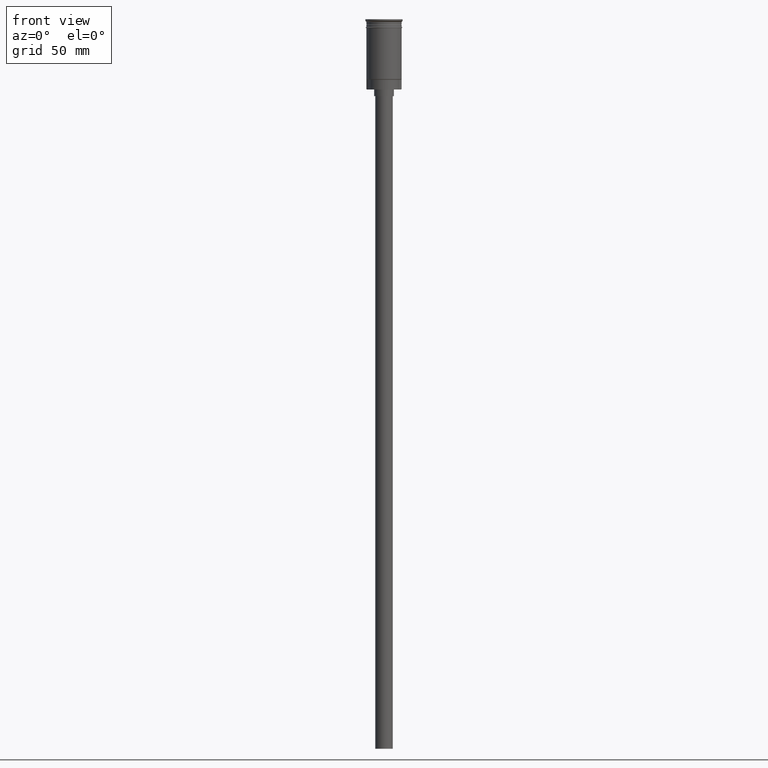
[diagram: clean part render]
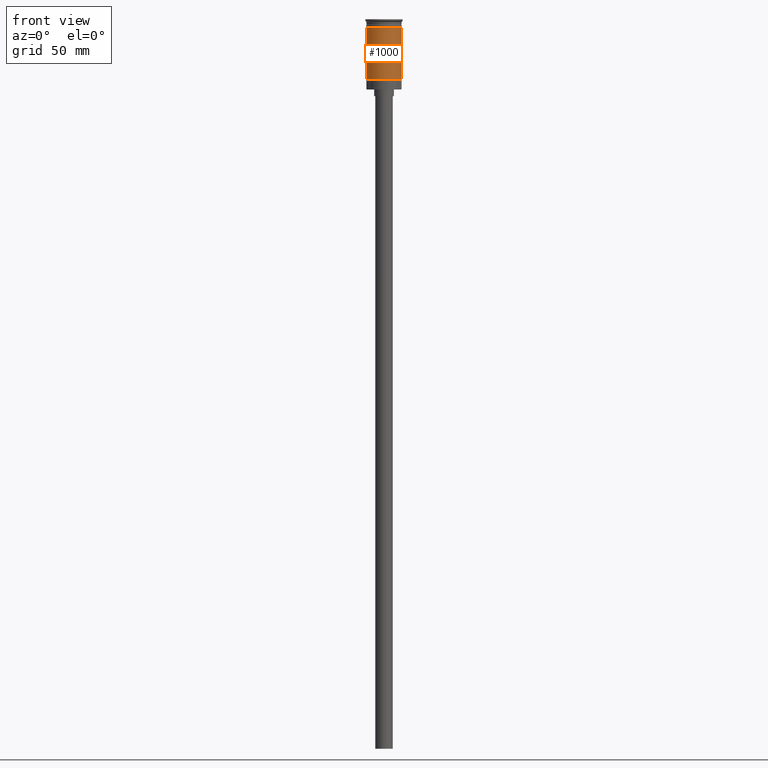
[diagram: same view with one face highlighted and labeled with its STEP entity id]
A machine part, front view. The second image highlights one B-rep face of the part: STEP entity #1000.
In plain terms, the highlighted cylindrical surface (edge-blend (fillet) strip) has radius 8 mm, axis along (-0, -0, 1).
Its self-contained STEP definition (entity closure, byte-faithful):
#42 = CARTESIAN_POINT ( 'NONE',  ( -7.999999999999996447, 9.797174393178821713E-16, 0.000000000000000000 ) ) ;
#64 = EDGE_LOOP ( 'NONE', ( #1188, #287, #428, #749 ) ) ;
#77 = CYLINDRICAL_SURFACE ( 'NONE', #950, 7.999999999999996447 ) ;
#128 = EDGE_CURVE ( 'NONE', #792, #1369, #787, .T. ) ;
#198 = VERTEX_POINT ( 'NONE', #960 ) ;
#278 = CARTESIAN_POINT ( 'NONE',  ( 0.000000000000000000, 0.000000000000000000, -3.999999999999997335 ) ) ;
#287 = ORIENTED_EDGE ( 'NONE', *, *, #622, .T. ) ;
#321 = AXIS2_PLACEMENT_3D ( 'NONE', #355, #1430, #450 ) ;
#342 = VERTEX_POINT ( 'NONE', #1229 ) ;
#355 = CARTESIAN_POINT ( 'NONE',  ( 0.000000000000000000, 0.000000000000000000, -27.30000000000006466 ) ) ;
#407 = DIRECTION ( 'NONE',  ( -0.000000000000000000, -0.000000000000000000, 1.000000000000000000 ) ) ;
#418 = CARTESIAN_POINT ( 'NONE',  ( 8.000000000000000000, 0.000000000000000000, -3.999999999999997335 ) ) ;
#428 = ORIENTED_EDGE ( 'NONE', *, *, #128, .T. ) ;
#445 = CARTESIAN_POINT ( 'NONE',  ( 7.999999999999996447, 0.000000000000000000, 0.000000000000000000 ) ) ;
#450 = DIRECTION ( 'NONE',  ( -1.000000000000000000, 0.000000000000000000, 0.000000000000000000 ) ) ;
#560 = EDGE_CURVE ( 'NONE', #342, #198, #911, .T. ) ;
#573 = DIRECTION ( 'NONE',  ( 1.000000000000000000, 0.000000000000000000, 0.000000000000000000 ) ) ;
#622 = EDGE_CURVE ( 'NONE', #342, #792, #761, .T. ) ;
#624 = CARTESIAN_POINT ( 'NONE',  ( 7.999999999999996447, 9.797174393178821713E-16, -27.30000000000006466 ) ) ;
#669 = DIRECTION ( 'NONE',  ( -0.000000000000000000, -0.000000000000000000, 1.000000000000000000 ) ) ;
#684 = CIRCLE ( 'NONE', #873, 8.000000000000000000 ) ;
#732 = VECTOR ( 'NONE', #669, 1000.000000000000000 ) ;
#749 = ORIENTED_EDGE ( 'NONE', *, *, #1258, .F. ) ;
#761 = CIRCLE ( 'NONE', #321, 7.999999999999996447 ) ;
#787 = LINE ( 'NONE', #445, #732 ) ;
#792 = VERTEX_POINT ( 'NONE', #624 ) ;
#832 = FACE_OUTER_BOUND ( 'NONE', #64, .T. ) ;
#873 = AXIS2_PLACEMENT_3D ( 'NONE', #278, #1011, #1492 ) ;
#911 = LINE ( 'NONE', #42, #1432 ) ;
#950 = AXIS2_PLACEMENT_3D ( 'NONE', #1394, #407, #573 ) ;
#960 = CARTESIAN_POINT ( 'NONE',  ( -8.000000000000000000, 9.797174393178825657E-16, -3.999999999999997335 ) ) ;
#1000 = ADVANCED_FACE ( 'NONE', ( #832 ), #77, .T. ) ;
#1011 = DIRECTION ( 'NONE',  ( -0.000000000000000000, -0.000000000000000000, 1.000000000000000000 ) ) ;
#1170 = DIRECTION ( 'NONE',  ( -0.000000000000000000, -0.000000000000000000, 1.000000000000000000 ) ) ;
#1188 = ORIENTED_EDGE ( 'NONE', *, *, #560, .F. ) ;
#1229 = CARTESIAN_POINT ( 'NONE',  ( -7.999999999999992895, 0.000000000000000000, -27.30000000000006466 ) ) ;
#1258 = EDGE_CURVE ( 'NONE', #198, #1369, #684, .T. ) ;
#1369 = VERTEX_POINT ( 'NONE', #418 ) ;
#1394 = CARTESIAN_POINT ( 'NONE',  ( 0.000000000000000000, 0.000000000000000000, 0.000000000000000000 ) ) ;
#1430 = DIRECTION ( 'NONE',  ( -0.000000000000000000, -0.000000000000000000, 1.000000000000000000 ) ) ;
#1432 = VECTOR ( 'NONE', #1170, 1000.000000000000000 ) ;
#1492 = DIRECTION ( 'NONE',  ( 1.000000000000000000, 0.000000000000000000, 0.000000000000000000 ) ) ;